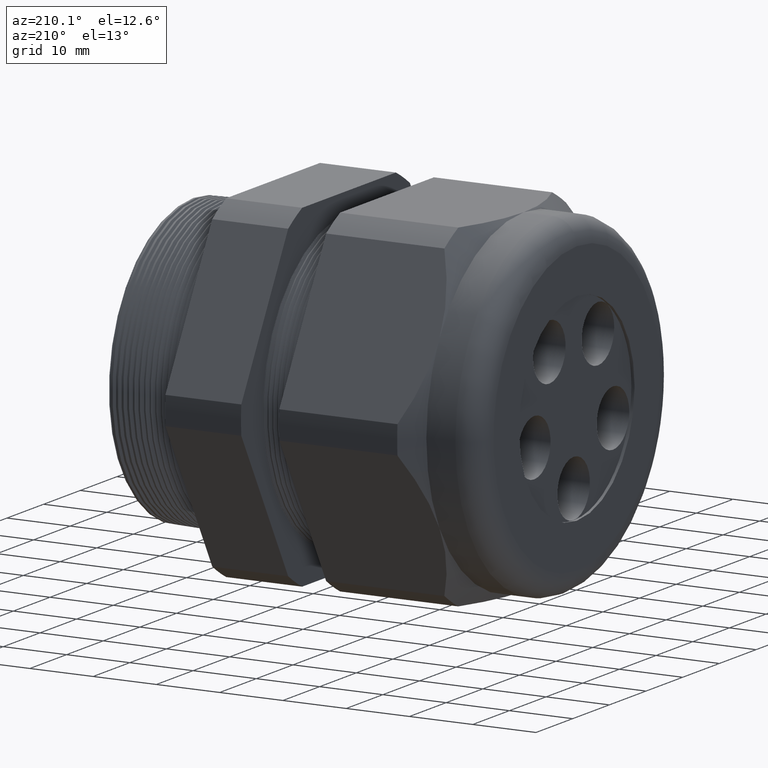
[diagram: clean part render]
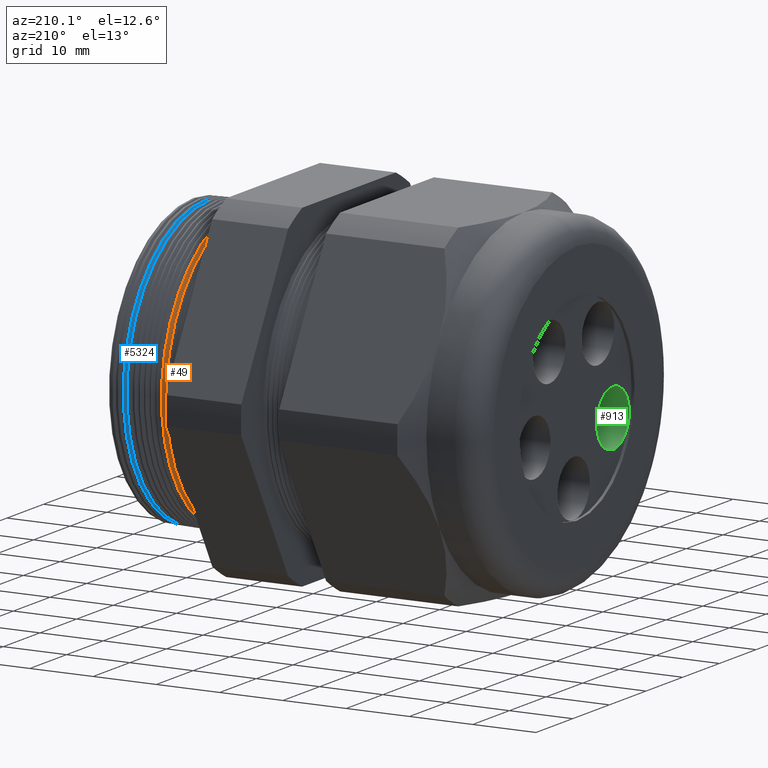
[diagram: same view with three faces highlighted in distinct colors, each labeled with its STEP entity id]
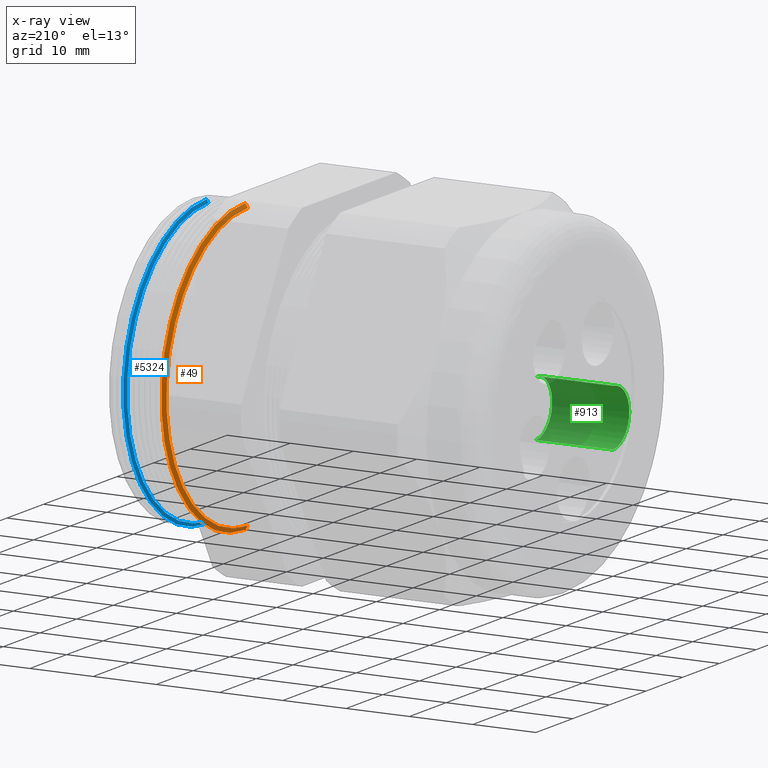
[diagram: x-ray of the same camera — body ghosted, the three highlighted faces saturated]
A machine part, auxiliary view with three faces highlighted in distinct colors.
The next image is the same camera in x-ray (body ghosted, the three faces saturated) — at least one of them is partly hidden behind the body in this view.
Their STEP definitions:

[orange] entity #49 — the highlighted conical surface has half-angle 58.5 deg.
#12 = EDGE_CURVE ( 'NONE', #5444, #24, #1569, .T. ) ;
#24 = VERTEX_POINT ( 'NONE', #1603 ) ;
#47 = EDGE_LOOP ( 'NONE', ( #5446, #5442, #454, #5464 ) ) ;
#49 = ADVANCED_FACE ( 'NONE', ( #1614 ), #1676, .T. ) ;
#454 = ORIENTED_EDGE ( 'NONE', *, *, #476, .T. ) ;
#474 = VERTEX_POINT ( 'NONE', #2503 ) ;
#476 = EDGE_CURVE ( 'NONE', #482, #24, #2502, .T. ) ;
#482 = VERTEX_POINT ( 'NONE', #2548 ) ;
#524 = EDGE_CURVE ( 'NONE', #474, #482, #2588, .T. ) ;
#1566 = DIRECTION ( 'NONE',  ( 0.5224985647159368100, 0.0000000000000000000, -0.8526401643540996200 ) ) ;
#1567 = VECTOR ( 'NONE', #1566, 39.37007874015748100 ) ;
#1568 = CARTESIAN_POINT ( 'NONE',  ( -0.1534707356790752100, 0.0000000000000000000, -0.8759962276773553000 ) ) ;
#1569 = LINE ( 'NONE', #1568, #1567 ) ;
#1603 = CARTESIAN_POINT ( 'NONE',  ( -0.1375819195166167500, 1.104538852970847100E-016, -0.9019244191385387100 ) ) ;
#1614 = FACE_OUTER_BOUND ( 'NONE', #47, .T. ) ;
#1672 = DIRECTION ( 'NONE',  ( 0.0000000000000000000, 0.0000000000000000000, -1.000000000000000000 ) ) ;
#1673 = DIRECTION ( 'NONE',  ( 1.000000000000000000, 0.0000000000000000000, 0.0000000000000000000 ) ) ;
#1674 = CARTESIAN_POINT ( 'NONE',  ( -0.1534707356790752100, 0.0000000000000000000, 0.0000000000000000000 ) ) ;
#1675 = AXIS2_PLACEMENT_3D ( 'NONE', #1674, #1673, #1672 ) ;
#1676 = CONICAL_SURFACE ( 'NONE', #1675, 0.8759962276773553000, 1.021017612416697000 ) ;
#2498 = DIRECTION ( 'NONE',  ( 0.0000000000000000000, 0.0000000000000000000, -1.000000000000000000 ) ) ;
#2499 = DIRECTION ( 'NONE',  ( -1.000000000000000000, 0.0000000000000000000, 0.0000000000000000000 ) ) ;
#2500 = CARTESIAN_POINT ( 'NONE',  ( -0.1375819195166167500, 0.0000000000000000000, 0.0000000000000000000 ) ) ;
#2501 = AXIS2_PLACEMENT_3D ( 'NONE', #2500, #2499, #2498 ) ;
#2502 = CIRCLE ( 'NONE', #2501, 0.9019244191385387100 ) ;
#2503 = CARTESIAN_POINT ( 'NONE',  ( -0.1534707356790752100, 0.0000000000000000000, 0.8759962276773553000 ) ) ;
#2548 = CARTESIAN_POINT ( 'NONE',  ( -0.1375819195166167500, 0.0000000000000000000, 0.9019244191385387100 ) ) ;
#2585 = DIRECTION ( 'NONE',  ( 0.5224985647159368100, 1.044183048100721200E-016, 0.8526401643540996200 ) ) ;
#2586 = VECTOR ( 'NONE', #2585, 39.37007874015748100 ) ;
#2587 = CARTESIAN_POINT ( 'NONE',  ( -0.1534707356790752100, 1.072785976290229300E-016, 0.8759962276773553000 ) ) ;
#2588 = LINE ( 'NONE', #2587, #2586 ) ;
#4945 = DIRECTION ( 'NONE',  ( 0.0000000000000000000, 0.0000000000000000000, -1.000000000000000000 ) ) ;
#4946 = DIRECTION ( 'NONE',  ( 1.000000000000000000, 0.0000000000000000000, 0.0000000000000000000 ) ) ;
#4947 = CARTESIAN_POINT ( 'NONE',  ( -0.1534707356790752100, 0.0000000000000000000, 0.0000000000000000000 ) ) ;
#4948 = AXIS2_PLACEMENT_3D ( 'NONE', #4947, #4946, #4945 ) ;
#4949 = CIRCLE ( 'NONE', #4948, 0.8759962276773553000 ) ;
#4964 = CARTESIAN_POINT ( 'NONE',  ( -0.1534707356790752100, 1.089149837957660200E-016, -0.8759962276773553000 ) ) ;
#5442 = ORIENTED_EDGE ( 'NONE', *, *, #524, .T. ) ;
#5444 = VERTEX_POINT ( 'NONE', #4964 ) ;
#5446 = ORIENTED_EDGE ( 'NONE', *, *, #5457, .T. ) ;
#5457 = EDGE_CURVE ( 'NONE', #5444, #474, #4949, .T. ) ;
#5464 = ORIENTED_EDGE ( 'NONE', *, *, #12, .F. ) ;

[blue] entity #5324 — the highlighted conical surface has half-angle 58.5 deg.
#4693 = CARTESIAN_POINT ( 'NONE',  ( 0.1035487166337340900, 0.0000000000000000000, 0.8956101912123792800 ) ) ;
#4694 = DIRECTION ( 'NONE',  ( 0.5224985647159368100, 1.044183048100721200E-016, 0.8526401643540996200 ) ) ;
#4695 = VECTOR ( 'NONE', #4694, 39.37007874015748100 ) ;
#4696 = CARTESIAN_POINT ( 'NONE',  ( 0.09152926432092477200, 1.072785976290229300E-016, 0.8759962276773553000 ) ) ;
#4697 = LINE ( 'NONE', #4696, #4695 ) ;
#4702 = DIRECTION ( 'NONE',  ( 0.0000000000000000000, 0.0000000000000000000, -1.000000000000000000 ) ) ;
#4703 = DIRECTION ( 'NONE',  ( 1.000000000000000000, 0.0000000000000000000, 0.0000000000000000000 ) ) ;
#4704 = CARTESIAN_POINT ( 'NONE',  ( 0.09152926432092477200, 0.0000000000000000000, 0.0000000000000000000 ) ) ;
#4705 = AXIS2_PLACEMENT_3D ( 'NONE', #4704, #4703, #4702 ) ;
#4706 = CONICAL_SURFACE ( 'NONE', #4705, 0.8759962276773553000, 1.021017612416697000 ) ;
#4707 = FACE_OUTER_BOUND ( 'NONE', #5314, .T. ) ;
#4716 = DIRECTION ( 'NONE',  ( 0.5224985647159368100, 0.0000000000000000000, -0.8526401643540996200 ) ) ;
#4717 = VECTOR ( 'NONE', #4716, 39.37007874015748100 ) ;
#4718 = CARTESIAN_POINT ( 'NONE',  ( 0.09152926432092477200, 0.0000000000000000000, -0.8759962276773553000 ) ) ;
#4719 = LINE ( 'NONE', #4718, #4717 ) ;
#4735 = CARTESIAN_POINT ( 'NONE',  ( 0.09152926432092477200, 1.085164787458670000E-016, -0.8759962276773553000 ) ) ;
#4736 = CARTESIAN_POINT ( 'NONE',  ( 0.09152926432092477200, 0.0000000000000000000, 0.8759962276773553000 ) ) ;
#4737 = DIRECTION ( 'NONE',  ( 0.0000000000000000000, 0.0000000000000000000, -1.000000000000000000 ) ) ;
#4738 = DIRECTION ( 'NONE',  ( 1.000000000000000000, 0.0000000000000000000, 0.0000000000000000000 ) ) ;
#4739 = CARTESIAN_POINT ( 'NONE',  ( 0.09152926432092477200, 0.0000000000000000000, 0.0000000000000000000 ) ) ;
#4740 = AXIS2_PLACEMENT_3D ( 'NONE', #4739, #4738, #4737 ) ;
#4741 = CIRCLE ( 'NONE', #4740, 0.8759962276773553000 ) ;
#4756 = CARTESIAN_POINT ( 'NONE',  ( 0.1035487166337340900, 1.096806153951989300E-016, -0.8956101912123792800 ) ) ;
#4758 = DIRECTION ( 'NONE',  ( 0.0000000000000000000, 0.0000000000000000000, -1.000000000000000000 ) ) ;
#4759 = DIRECTION ( 'NONE',  ( -1.000000000000000000, 0.0000000000000000000, 0.0000000000000000000 ) ) ;
#4760 = CARTESIAN_POINT ( 'NONE',  ( 0.1035487166337340900, 0.0000000000000000000, 0.0000000000000000000 ) ) ;
#4761 = AXIS2_PLACEMENT_3D ( 'NONE', #4760, #4759, #4758 ) ;
#4762 = CIRCLE ( 'NONE', #4761, 0.8956101912123791700 ) ;
#5314 = EDGE_LOOP ( 'NONE', ( #5319, #5330, #5327, #5357 ) ) ;
#5319 = ORIENTED_EDGE ( 'NONE', *, *, #5334, .T. ) ;
#5324 = ADVANCED_FACE ( 'NONE', ( #4707 ), #4706, .T. ) ;
#5326 = EDGE_CURVE ( 'NONE', #5335, #5328, #4697, .T. ) ;
#5327 = ORIENTED_EDGE ( 'NONE', *, *, #5355, .T. ) ;
#5328 = VERTEX_POINT ( 'NONE', #4693 ) ;
#5330 = ORIENTED_EDGE ( 'NONE', *, *, #5326, .T. ) ;
#5334 = EDGE_CURVE ( 'NONE', #5336, #5335, #4741, .T. ) ;
#5335 = VERTEX_POINT ( 'NONE', #4736 ) ;
#5336 = VERTEX_POINT ( 'NONE', #4735 ) ;
#5348 = EDGE_CURVE ( 'NONE', #5336, #5359, #4719, .T. ) ;
#5355 = EDGE_CURVE ( 'NONE', #5328, #5359, #4762, .T. ) ;
#5357 = ORIENTED_EDGE ( 'NONE', *, *, #5348, .F. ) ;
#5359 = VERTEX_POINT ( 'NONE', #4756 ) ;

[green] entity #913 — the highlighted cylindrical surface (edge-blend (fillet) strip) has radius 4.445 mm, axis along (-1, 0, 0).
#892 = VERTEX_POINT ( 'NONE', #3329 ) ;
#907 = VERTEX_POINT ( 'NONE', #3312 ) ;
#908 = VERTEX_POINT ( 'NONE', #3311 ) ;
#909 = VERTEX_POINT ( 'NONE', #3310 ) ;
#910 = ORIENTED_EDGE ( 'NONE', *, *, #911, .F. ) ;
#911 = EDGE_CURVE ( 'NONE', #908, #909, #3373, .T. ) ;
#913 = ADVANCED_FACE ( 'NONE', ( #3369 ), #3368, .F. ) ;
#914 = ORIENTED_EDGE ( 'NONE', *, *, #984, .F. ) ;
#936 = ORIENTED_EDGE ( 'NONE', *, *, #937, .T. ) ;
#937 = EDGE_CURVE ( 'NONE', #892, #909, #3385, .T. ) ;
#938 = EDGE_LOOP ( 'NONE', ( #914, #943, #936, #910 ) ) ;
#943 = ORIENTED_EDGE ( 'NONE', *, *, #944, .T. ) ;
#944 = EDGE_CURVE ( 'NONE', #907, #892, #3427, .T. ) ;
#984 = EDGE_CURVE ( 'NONE', #907, #908, #3531, .T. ) ;
#3310 = CARTESIAN_POINT ( 'NONE',  ( -2.179999999999999300, -0.4225544101899371100, 0.03770374939921203300 ) ) ;
#3311 = CARTESIAN_POINT ( 'NONE',  ( -1.699999999999999300, -0.4225544101899371100, 0.03770374939921203300 ) ) ;
#3312 = CARTESIAN_POINT ( 'NONE',  ( -1.699999999999999300, -0.4225544101899371100, -0.3122962506007879200 ) ) ;
#3329 = CARTESIAN_POINT ( 'NONE',  ( -2.179999999999999300, -0.4225544101899371100, -0.3122962506007879200 ) ) ;
#3363 = DIRECTION ( 'NONE',  ( 0.0000000000000000000, 0.0000000000000000000, 1.000000000000000000 ) ) ;
#3364 = DIRECTION ( 'NONE',  ( -1.000000000000000000, 0.0000000000000000000, 0.0000000000000000000 ) ) ;
#3365 = CARTESIAN_POINT ( 'NONE',  ( -1.699999999999999300, -0.4225544101899371100, -0.1372962506007879600 ) ) ;
#3366 = AXIS2_PLACEMENT_3D ( 'NONE', #3365, #3364, #3363 ) ;
#3368 = CYLINDRICAL_SURFACE ( 'NONE', #3366, 0.1749999999999999900 ) ;
#3369 = FACE_OUTER_BOUND ( 'NONE', #938, .T. ) ;
#3370 = DIRECTION ( 'NONE',  ( -1.000000000000000000, 0.0000000000000000000, 0.0000000000000000000 ) ) ;
#3371 = VECTOR ( 'NONE', #3370, 39.37007874015748100 ) ;
#3372 = CARTESIAN_POINT ( 'NONE',  ( -1.699999999999999300, -0.4225544101899371100, 0.03770374939921203300 ) ) ;
#3373 = LINE ( 'NONE', #3372, #3371 ) ;
#3377 = DIRECTION ( 'NONE',  ( 0.0000000000000000000, 0.9510565162951544200, 0.3090169943749446800 ) ) ;
#3378 = DIRECTION ( 'NONE',  ( -1.000000000000000000, 0.0000000000000000000, 0.0000000000000000000 ) ) ;
#3379 = CARTESIAN_POINT ( 'NONE',  ( -2.179999999999999300, -0.4225544101899371100, -0.1372962506007879600 ) ) ;
#3380 = AXIS2_PLACEMENT_3D ( 'NONE', #3379, #3378, #3377 ) ;
#3385 = CIRCLE ( 'NONE', #3380, 0.1750000000000000400 ) ;
#3424 = DIRECTION ( 'NONE',  ( -1.000000000000000000, 0.0000000000000000000, 0.0000000000000000000 ) ) ;
#3425 = VECTOR ( 'NONE', #3424, 39.37007874015748100 ) ;
#3426 = CARTESIAN_POINT ( 'NONE',  ( -1.699999999999999300, -0.4225544101899371100, -0.3122962506007879200 ) ) ;
#3427 = LINE ( 'NONE', #3426, #3425 ) ;
#3527 = DIRECTION ( 'NONE',  ( 0.0000000000000000000, 0.9510565162951544200, 0.3090169943749446800 ) ) ;
#3528 = DIRECTION ( 'NONE',  ( -1.000000000000000000, 0.0000000000000000000, 0.0000000000000000000 ) ) ;
#3529 = CARTESIAN_POINT ( 'NONE',  ( -1.699999999999999300, -0.4225544101899371100, -0.1372962506007879600 ) ) ;
#3530 = AXIS2_PLACEMENT_3D ( 'NONE', #3529, #3528, #3527 ) ;
#3531 = CIRCLE ( 'NONE', #3530, 0.1750000000000000400 ) ;